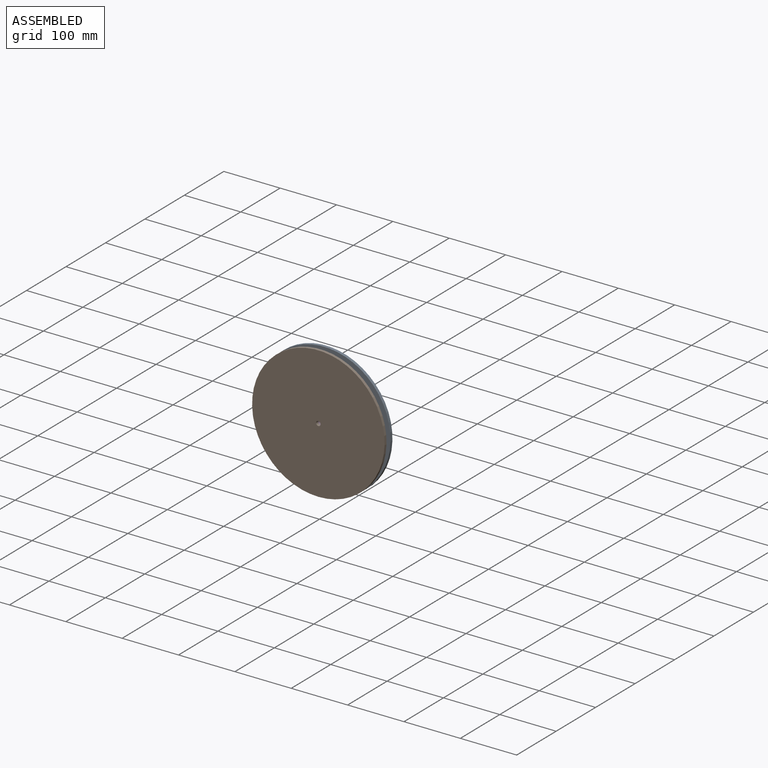
[diagram: assembled view]
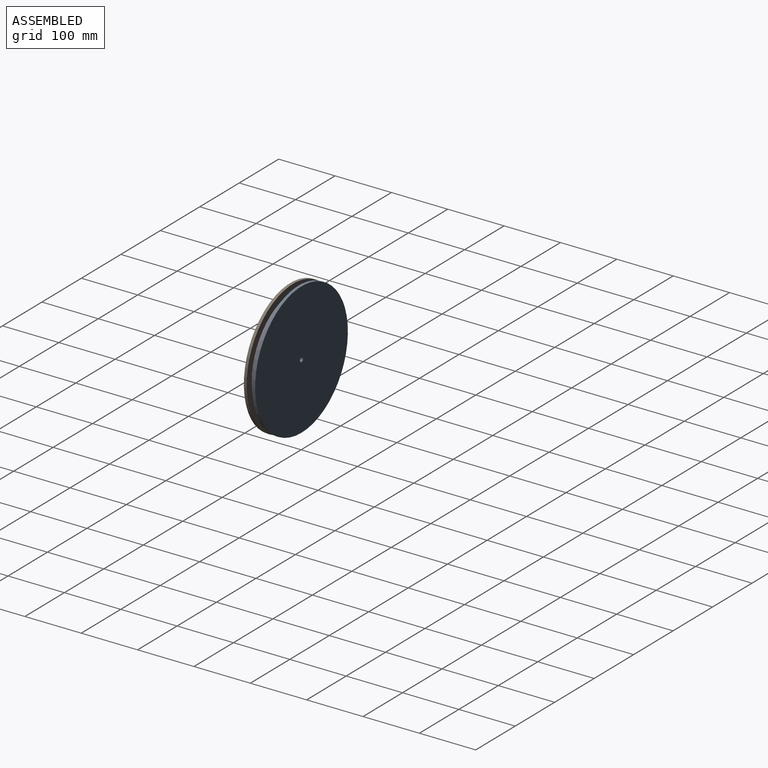
[diagram: assembled view, second angle]
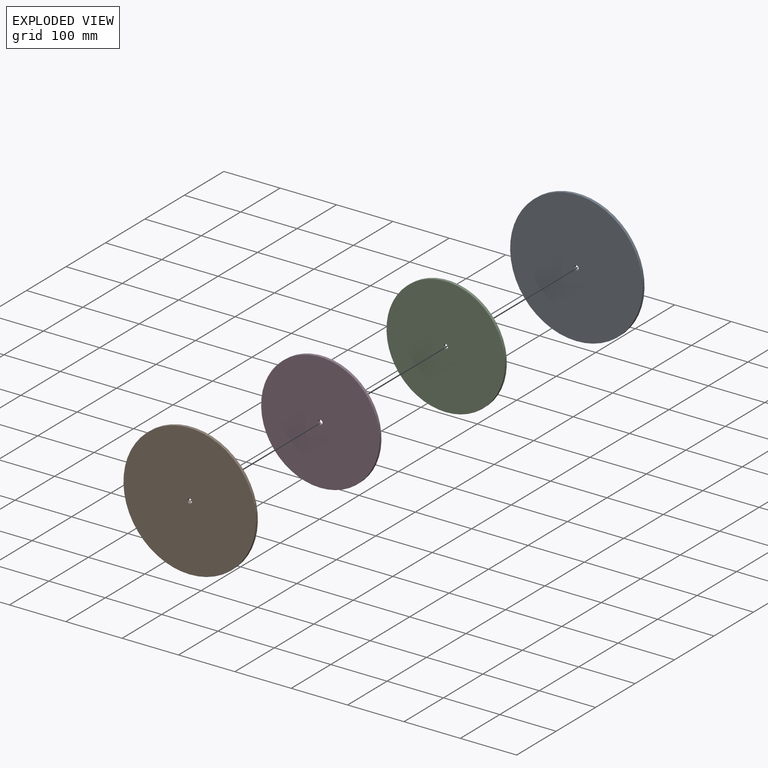
[diagram: exploded view]
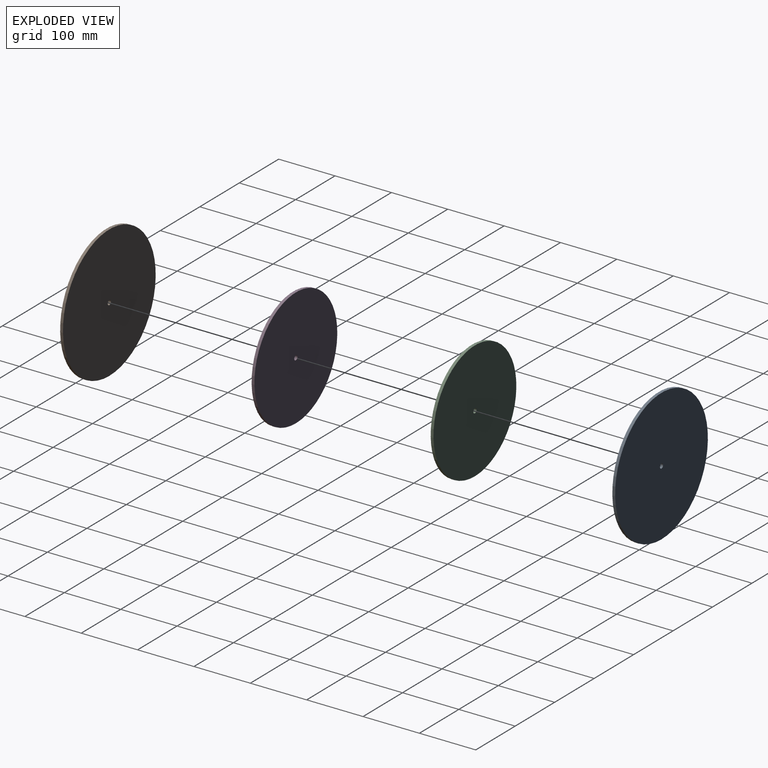
[diagram: exploded view, second angle]
ASSEMBLY  parts=4 mates=3
PART A: 4 faces, bbox 235x5x235 mm
  f0: cylinder r=4mm len=8mm, axis (0,1,0), area 125.7mm2, adj f2,f3
  f1: cylinder r=117.5mm len=235mm, axis (0,1,0), area 3691.4mm2, adj f2,f3
  f2: plane 235x235mm, normal (0,-1,0), area 43323.3mm2, adj f0,f1
  f3: plane 235x235mm, normal (0,1,0), area 43323.3mm2, adj f0,f1
PART B: same geometry as A
PART C: 4 faces, bbox 210x5x210 mm
  f0: cylinder r=4mm len=8mm, axis (0,1,0), area 125.7mm2, adj f2,f3
  f1: cylinder r=105mm len=210mm, axis (0,1,0), area 3298.7mm2, adj f2,f3
  f2: plane 210x210mm, normal (0,-1,0), area 34585.8mm2, adj f0,f1
  f3: plane 210x210mm, normal (0,1,0), area 34585.8mm2, adj f0,f1
PART D: same geometry as C
PLACE A t=(-574.3,78.22,57.67)mm
PLACE B t=(-574.3,63.22,57.67)mm
PLACE C t=(-327.81,73.22,58.65)mm
PLACE D t=(-327.81,68.22,58.65)mm
MATE fastened D.f0 <-> C.f0  axis (0,1,0) through (160.71,63.22,-202.61)mm
MATE fastened B.f0 <-> D.f0  axis (0,1,0) through (160.71,58.22,-202.61)mm
MATE fastened A.f0 <-> C.f0  axis (0,-1,0) through (160.71,68.22,-202.61)mm
